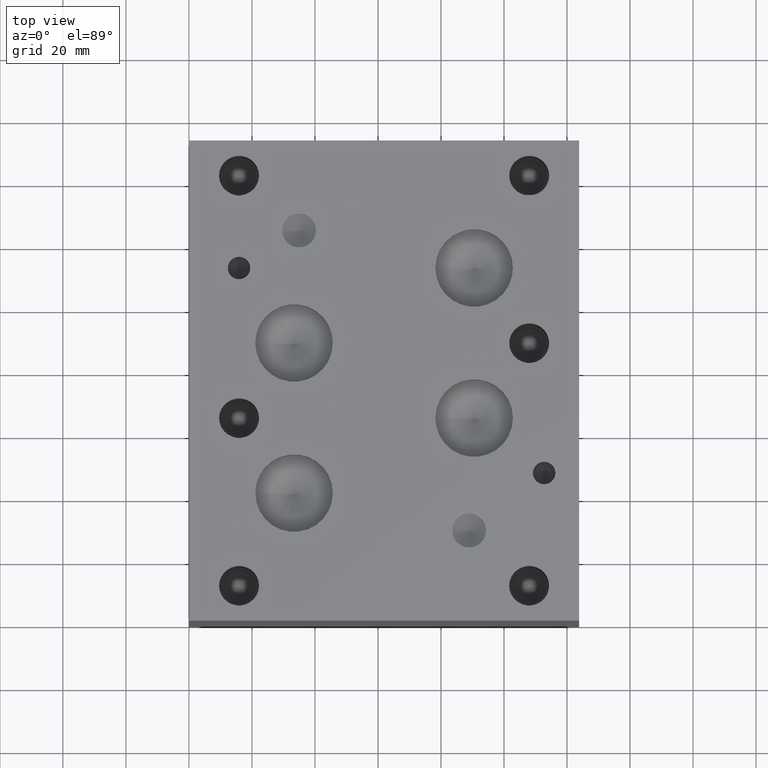
[diagram: clean part render]
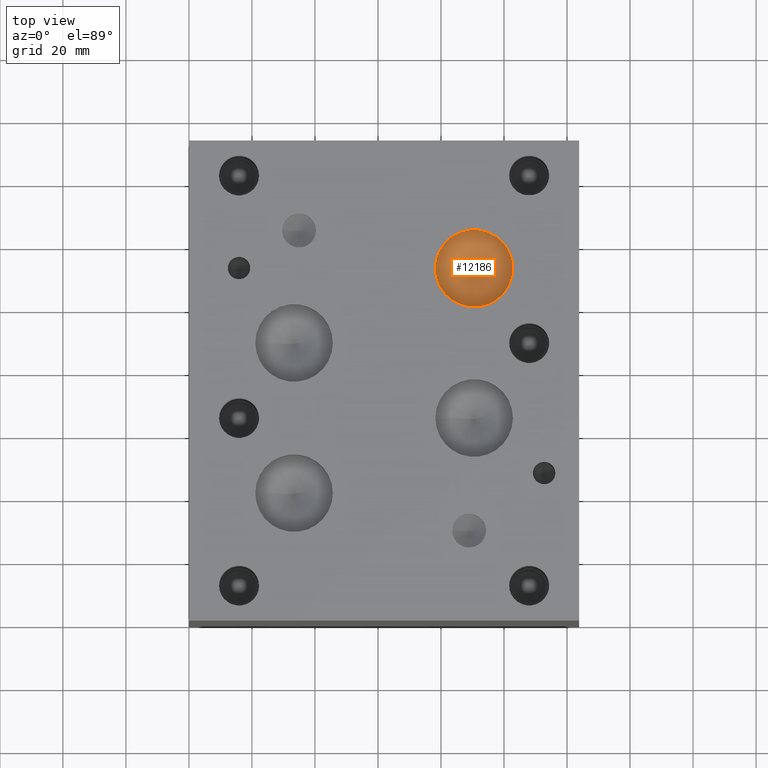
[diagram: same view with one face highlighted and labeled with its STEP entity id]
A machine part, top view. The second image highlights one B-rep face of the part: STEP entity #12186.
In plain terms, the highlighted conical surface has half-angle 60 deg.
Its self-contained STEP definition (entity closure, byte-faithful):
#138=CONICAL_SURFACE('',#12883,6.15315,1.0471975511966);
#361=CIRCLE('',#12884,12.3063);
#362=CIRCLE('',#12885,12.3063);
#1449=FACE_OUTER_BOUND('',#2157,.T.);
#2157=EDGE_LOOP('',(#10783,#10784,#10785,#10786));
#3267=LINE('',#21084,#4349);
#4349=VECTOR('',#15332,6.15315);
#5814=VERTEX_POINT('',#21080);
#5815=VERTEX_POINT('',#21081);
#5816=VERTEX_POINT('',#21083);
#7493=EDGE_CURVE('',#5814,#5815,#361,.T.);
#7494=EDGE_CURVE('',#5815,#5816,#3267,.T.);
#7495=EDGE_CURVE('',#5815,#5814,#362,.T.);
#10783=ORIENTED_EDGE('',*,*,#7493,.T.);
#10784=ORIENTED_EDGE('',*,*,#7494,.T.);
#10785=ORIENTED_EDGE('',*,*,#7494,.F.);
#10786=ORIENTED_EDGE('',*,*,#7495,.T.);
#12186=ADVANCED_FACE('',(#1449),#138,.F.);
#12883=AXIS2_PLACEMENT_3D('',#21079,#15328,#15329);
#12884=AXIS2_PLACEMENT_3D('',#21082,#15330,#15331);
#12885=AXIS2_PLACEMENT_3D('',#21085,#15333,#15334);
#15328=DIRECTION('center_axis',(0.,0.,1.));
#15329=DIRECTION('ref_axis',(1.,0.,0.));
#15330=DIRECTION('center_axis',(0.,0.,1.));
#15331=DIRECTION('ref_axis',(1.,0.,0.));
#15332=DIRECTION('',(0.866025403784439,1.06057523872491E-16,-0.5));
#15333=DIRECTION('center_axis',(0.,0.,1.));
#15334=DIRECTION('ref_axis',(1.,0.,0.));
#21079=CARTESIAN_POINT('Origin',(90.5002,111.9124,113.167427191136));
#21080=CARTESIAN_POINT('',(102.8065,111.9124,116.71995));
#21081=CARTESIAN_POINT('',(78.1939,111.9124,116.71995));
#21082=CARTESIAN_POINT('Origin',(90.5002,111.9124,116.71995));
#21083=CARTESIAN_POINT('',(90.5002,111.9124,109.614904382272));
#21084=CARTESIAN_POINT('',(84.34705,111.9124,113.167427191136));
#21085=CARTESIAN_POINT('Origin',(90.5002,111.9124,116.71995));